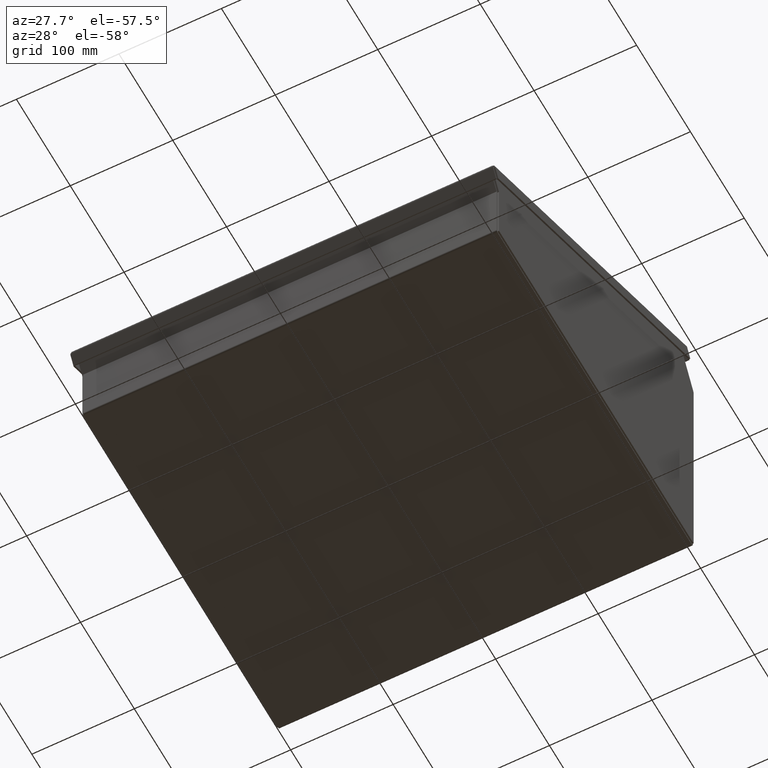
[diagram: clean part render]
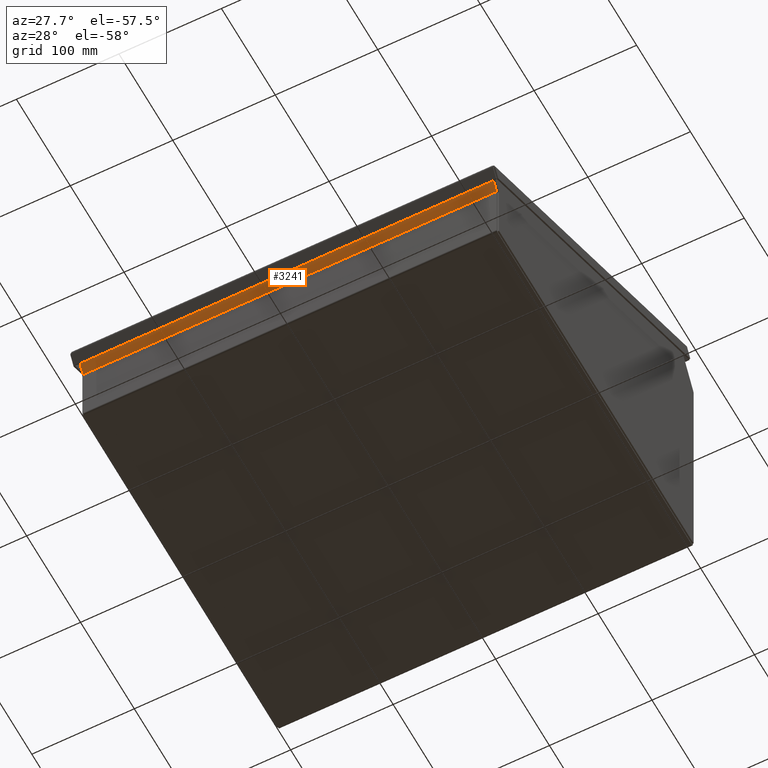
[diagram: same view with one face highlighted and labeled with its STEP entity id]
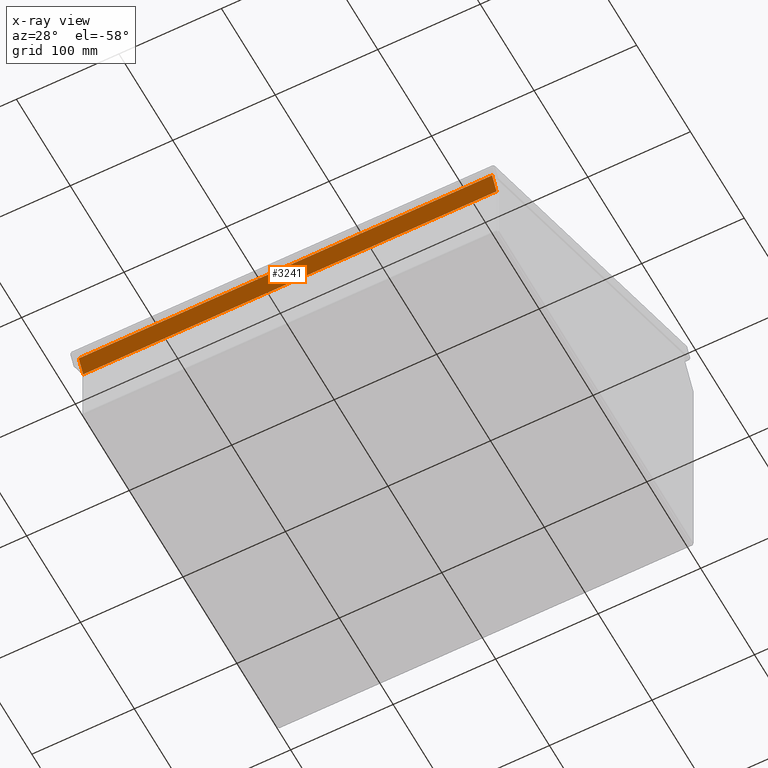
[diagram: x-ray of the same camera — body ghosted, the highlighted face saturated]
A machine part, auxiliary view. The second image highlights one B-rep face of the part: STEP entity #3241.
The next image is the same camera in x-ray: the body ghosted, the highlighted face saturated — about 0% of this face is hidden behind the body in this view.
In plain terms, the highlighted planar face has unit normal (0, 0.866, 0.5).
Its self-contained STEP definition (entity closure, byte-faithful):
#3241 = ADVANCED_FACE( '', ( #7567 ), #7568, .F. );
#7567 = FACE_OUTER_BOUND( '', #19683, .T. );
#7568 = PLANE( '', #19684 );
#19683 = EDGE_LOOP( '', ( #50614, #50615, #50616, #50617 ) );
#19684 = AXIS2_PLACEMENT_3D( '', #50618, #50619, #50620 );
#50614 = ORIENTED_EDGE( '', *, *, #67111, .F. );
#50615 = ORIENTED_EDGE( '', *, *, #67112, .T. );
#50616 = ORIENTED_EDGE( '', *, *, #67113, .F. );
#50617 = ORIENTED_EDGE( '', *, *, #64980, .F. );
#50618 = CARTESIAN_POINT( '', ( 0.000000000000000, -109.257065475100, -63.0795961629177 ) );
#50619 = DIRECTION( '', ( 0.000000000000000, 0.866025403784439, 0.500000000000000 ) );
#50620 = DIRECTION( '', ( 0.000000000000000, -0.500000000000000, 0.866025403784439 ) );
#64980 = EDGE_CURVE( '', #71023, #71025, #71026, .T. );
#67111 = EDGE_CURVE( '', #74638, #71023, #74639, .T. );
#67112 = EDGE_CURVE( '', #74638, #74640, #74641, .T. );
#67113 = EDGE_CURVE( '', #71025, #74640, #74642, .T. );
#71023 = VERTEX_POINT( '', #80318 );
#71025 = VERTEX_POINT( '', #80320 );
#71026 = LINE( '', #80321, #80322 );
#74638 = VERTEX_POINT( '', #90932 );
#74639 = LINE( '', #90933, #90934 );
#74640 = VERTEX_POINT( '', #90935 );
#74641 = LINE( '', #90936, #90937 );
#74642 = LINE( '', #90938, #90939 );
#80318 = CARTESIAN_POINT( '', ( 201.676000000000, -182.417394551804, 63.6378108963919 ) );
#80320 = CARTESIAN_POINT( '', ( -201.676000000000, -182.417394551804, 63.6378108963919 ) );
#80321 = CARTESIAN_POINT( '', ( 201.676000000000, -182.417394551804, 63.6378108963919 ) );
#80322 = VECTOR( '', #104033, 1000.00000000000 );
#90932 = CARTESIAN_POINT( '', ( 201.676000000000, -190.664122715368, 77.9215630718931 ) );
#90933 = CARTESIAN_POINT( '', ( 201.676000000000, -182.310001824935, 63.4518012370913 ) );
#90934 = VECTOR( '', #105141, 1000.00000000000 );
#90935 = CARTESIAN_POINT( '', ( -201.676000000000, -190.664122715368, 77.9215630718931 ) );
#90936 = CARTESIAN_POINT( '', ( 201.676000000000, -190.664122715368, 77.9215630718931 ) );
#90937 = VECTOR( '', #105142, 1000.00000000000 );
#90938 = CARTESIAN_POINT( '', ( -201.676000000000, -182.310001824935, 63.4518012370913 ) );
#90939 = VECTOR( '', #105143, 1000.00000000000 );
#104033 = DIRECTION( '', ( -1.00000000000000, 0.000000000000000, 0.000000000000000 ) );
#105141 = DIRECTION( '', ( 0.000000000000000, 0.500000000000000, -0.866025403784439 ) );
#105142 = DIRECTION( '', ( -1.00000000000000, 0.000000000000000, 0.000000000000000 ) );
#105143 = DIRECTION( '', ( 0.000000000000000, -0.500000000000000, 0.866025403784439 ) );